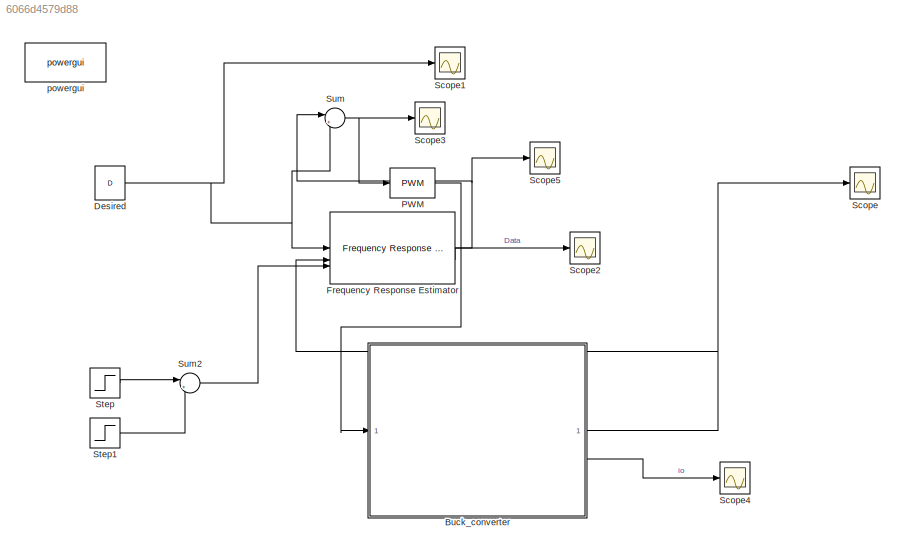
MODEL slx_6066d4579d88
KIND model
CONFIG AbsTol = auto
CONFIG EnableMultiTasking = on
CONFIG FixedStep = auto
CONFIG MaxStep = auto
CONFIG MinStep = auto
CONFIG PreLoadFcn = load('watertankdat')
CONFIG RelTol = 1e-3
CONFIG SampleTimeConstraint = Unconstrained
CONFIG SolverName = ode45
CONFIG StartTime = 0.0
CONFIG StopTime = Tend*5/2
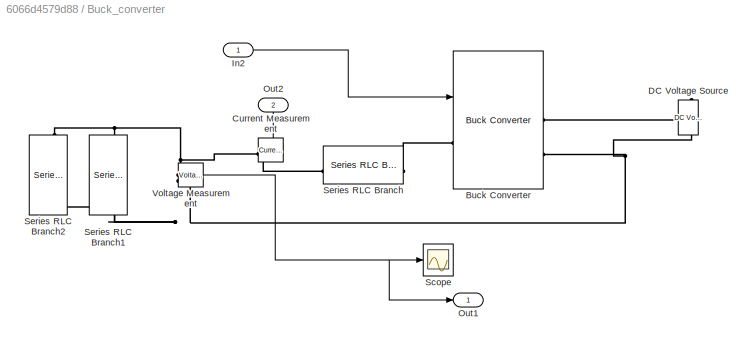
BLOCK [SubSystem] Buck_converter
BLOCK [Reference] Buck_converter/Buck Converter  REF=spsBuckConverterLib/Buck Converter
  LibrarySourceBlock = sps_lib/Power Electronics/Buck Converter
  SourceBlock = spsBuckConverterLib/Buck Converter
  SourceType = Buck Converter
BLOCK [Reference] Buck_converter/Current Measurement  REF=spsCurrentMeasurementLib/Current Measurement
  LibrarySourceBlock = sps_lib/Sensors and Measurements/Current Measurement
  NameLocation = top
  SourceBlock = spsCurrentMeasurementLib/Current Measurement
  SourceType = Current Measurement
  UserDataPersistent = on
BLOCK [Reference] Buck_converter/DC Voltage Source  REF=spsDCVoltageSourceLib/DC Voltage Source
  LibrarySourceBlock = sps_lib/Sources/DC Voltage Source
  SourceBlock = spsDCVoltageSourceLib/DC Voltage Source
  SourceType = DC Voltage Source
BLOCK [Inport] Buck_converter/In2
BLOCK [Outport] Buck_converter/Out1
BLOCK [Outport] Buck_converter/Out2
  Port = 2
BLOCK [Scope] Buck_converter/Scope
  Floating = off
  NumInputPorts = 1
  ScopeSpecificationString = Simulink.scopes.TimeScopeBlockCfg('CurrentConfiguration', extmgr.ConfigurationSet(extmgr.Configuration('Core','General UI',true),extmgr.Configuration('Core','Source UI',true),extmgr.Configuration('Sources','WiredSimulink',true),extmgr.Configuration('Visuals','Time Domain',true,'SerializedDisplays',{struct('MinYLimReal','-4.49005','MaxYLimReal','40.41043','YLabelReal','','MinYLimMag','0.00000','Max...<+1387ch>
BLOCK [Reference] Buck_converter/Series RLC Branch  REF=spsSeriesRLCBranchLib/Series RLC Branch
  LibrarySourceBlock = sps_lib/Passives/Series RLC Branch
  NameLocation = top
  SourceBlock = spsSeriesRLCBranchLib/Series RLC Branch
  SourceType = Series RLC Branch
BLOCK [Reference] Buck_converter/Series RLC Branch1  REF=spsSeriesRLCBranchLib/Series RLC Branch
  LibrarySourceBlock = sps_lib/Passives/Series RLC Branch
  NameLocation = left
  SourceBlock = spsSeriesRLCBranchLib/Series RLC Branch
  SourceType = Series RLC Branch
BLOCK [Reference] Buck_converter/Series RLC Branch2  REF=spsSeriesRLCBranchLib/Series RLC Branch
  LibrarySourceBlock = sps_lib/Passives/Series RLC Branch
  NameLocation = left
  SourceBlock = spsSeriesRLCBranchLib/Series RLC Branch
  SourceType = Series RLC Branch
BLOCK [Reference] Buck_converter/Voltage Measurement  REF=spsVoltageMeasurementLib/Voltage Measurement
  LibrarySourceBlock = sps_lib/Sensors and Measurements/Voltage Measurement
  SourceBlock = spsVoltageMeasurementLib/Voltage Measurement
  SourceType = Voltage Measurement
  UserDataPersistent = on
BLOCK [Constant] Desired 
  Value = D
BLOCK [Reference] Frequency Response Estimator  REF=slctrl_fre/Frequency Response Estimator
  LibrarySourceBlock = slctrlblks/Frequency Response Estimation/Frequency Response Estimator
  SourceBlock = slctrl_fre/Frequency Response Estimator
  SourceType = Frequency Response Estimator
BLOCK [Reference] PWM  REF=simulink/Discontinuities/PWM
  DisableCoverage = on
  SourceBlock = simulink/Discontinuities/PWM
  SourceType = PWM
BLOCK [Scope] Scope
  Floating = off
  NumInputPorts = 1
  ScopeSpecificationString = Simulink.scopes.TimeScopeBlockCfg('CurrentConfiguration', extmgr.ConfigurationSet(extmgr.Configuration('Core','General UI',true),extmgr.Configuration('Core','Source UI',true),extmgr.Configuration('Sources','WiredSimulink',true,'DataLoggingSaveFormat','StructureWithTime','DataLoggingLimitDataPoints',true,'DataLoggingDecimation','1','DataLoggingDecimateData',true),extmgr.Configuration('Visuals','Tim...<+1695ch>
BLOCK [Scope] Scope1
  Floating = off
  NumInputPorts = 1
  ScopeSpecificationString = Simulink.scopes.TimeScopeBlockCfg('CurrentConfiguration', extmgr.ConfigurationSet(extmgr.Configuration('Core','General UI',true),extmgr.Configuration('Core','Source UI',true),extmgr.Configuration('Sources','WiredSimulink',true,'DataLoggingVariableName','ScopeData2'),extmgr.Configuration('Visuals','Time Domain',true,'SerializedDisplays',{struct('MinYLimReal','-0.53508','MaxYLimReal','1.30221','YLab...<+1458ch>
BLOCK [Scope] Scope2
  Floating = off
  NumInputPorts = 1
  ScopeSpecificationString = Simulink.scopes.TimeScopeBlockCfg('CurrentConfiguration', extmgr.ConfigurationSet(extmgr.Configuration('Core','General UI',true),extmgr.Configuration('Core','Source UI',true),extmgr.Configuration('Sources','WiredSimulink',true,'DataLoggingSaveFormat','StructureWithTime','DataLoggingLimitDataPoints',true,'DataLoggingDecimation','1','DataLoggingDecimateData',true,'DataLoggingVariableName','ScopeData...<+1903ch>
BLOCK [Scope] Scope3
  Floating = off
  NumInputPorts = 1
  ScopeSpecificationString = Simulink.scopes.TimeScopeBlockCfg('CurrentConfiguration', extmgr.ConfigurationSet(extmgr.Configuration('Core','General UI',true),extmgr.Configuration('Core','Source UI',true),extmgr.Configuration('Sources','WiredSimulink',true,'DataLoggingVariableName','ScopeData4'),extmgr.Configuration('Visuals','Time Domain',true,'SerializedDisplays',{struct('MinYLimReal','0.2875','MaxYLimReal','0.3125','YLabelR...<+1424ch>
BLOCK [Scope] Scope4
  Floating = off
  NumInputPorts = 1
  ScopeSpecificationString = Simulink.scopes.TimeScopeBlockCfg('CurrentConfiguration', extmgr.ConfigurationSet(extmgr.Configuration('Core','General UI',true),extmgr.Configuration('Core','Source UI',true),extmgr.Configuration('Sources','WiredSimulink',true,'DataLoggingSaveFormat','StructureWithTime','DataLoggingLimitDataPoints',true,'DataLoggingDecimation','1','DataLoggingDecimateData',true,'DataLoggingVariableName','ScopeData...<+1853ch>
BLOCK [Scope] Scope5
  Floating = off
  NumInputPorts = 1
  ScopeSpecificationString = Simulink.scopes.TimeScopeBlockCfg('CurrentConfiguration', extmgr.ConfigurationSet(extmgr.Configuration('Core','General UI',true),extmgr.Configuration('Core','Source UI',true),extmgr.Configuration('Sources','WiredSimulink',true,'DataLoggingVariableName','ScopeData5'),extmgr.Configuration('Visuals','Time Domain',true,'SerializedDisplays',{struct('MinYLimReal','-0.125','MaxYLimReal','0.125','YLabelRe...<+1477ch>
BLOCK [Step] Step
  SampleTime = 0
  Time = Tend/2
BLOCK [Step] Step1
  After = -1
  SampleTime = 0
  Time = 0.5
BLOCK [Sum] Sum
  Inputs = |++
BLOCK [Sum] Sum2
  Inputs = |++
BLOCK [Reference] powergui  REF=sps_lib/powergui
  LibrarySourceBlock = sps_lib/powergui
  Priority = 1
  SourceBlock = sps_lib/powergui
  SourceType = PSB option menu block
LINE Buck_converter/Current Measurement:1 -> Buck_converter/Out2:1
LINE Buck_converter/In2:1 -> Buck_converter/Buck Converter:1
NET Buck_converter/Voltage Measurement:1 -> Buck_converter/Out1:1, Buck_converter/Scope:1
NET Buck_converter:1 -> Frequency Response Estimator:2, Scope:1
LINE Buck_converter:2 -> Scope4:1
NET Desired :1 -> Frequency Response Estimator:1, Scope1:1, Sum:2
NET Frequency Response Estimator:1 -> Scope5:1, Sum:1
LINE Frequency Response Estimator:2 -> Scope2:1
LINE PWM:1 -> Buck_converter:1
LINE Step1:1 -> Sum2:2
LINE Step:1 -> Sum2:1
LINE Sum2:1 -> Frequency Response Estimator:3
NET Sum:1 -> PWM:1, Scope3:1
PLINE Buck_converter/Buck Converter:LConn1 -- Buck_converter/Series RLC Branch:LConn1
PLINE Buck_converter/Buck Converter:RConn1 -- Buck_converter/DC Voltage Source:RConn1
PNET net1: Buck_converter/Buck Converter:RConn2 -- Buck_converter/DC Voltage Source:LConn1 -- Buck_converter/Series RLC Branch1:RConn1 -- Buck_converter/Series RLC Branch2:RConn1 -- Buck_converter/Voltage Measurement:LConn2
PLINE Buck_converter/Current Measurement:LConn1 -- Buck_converter/Series RLC Branch:RConn1
PNET net2: Buck_converter/Current Measurement:RConn1 -- Buck_converter/Series RLC Branch1:LConn1 -- Buck_converter/Series RLC Branch2:LConn1 -- Buck_converter/Voltage Measurement:LConn1
note: NET lines group one-source signal fan-out (src -> all destinations, sorted); 1:1 wires keep LINE; PNET lines group multi-terminal physical nets as a canonical sorted terminal list (undirected conserving connections); 2-terminal nets keep the pairwise PLINE form
